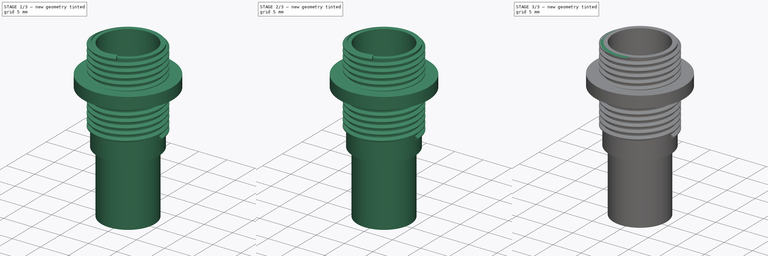
[diagram: build sequence overview — one tinted view per stage of 3, left to right]
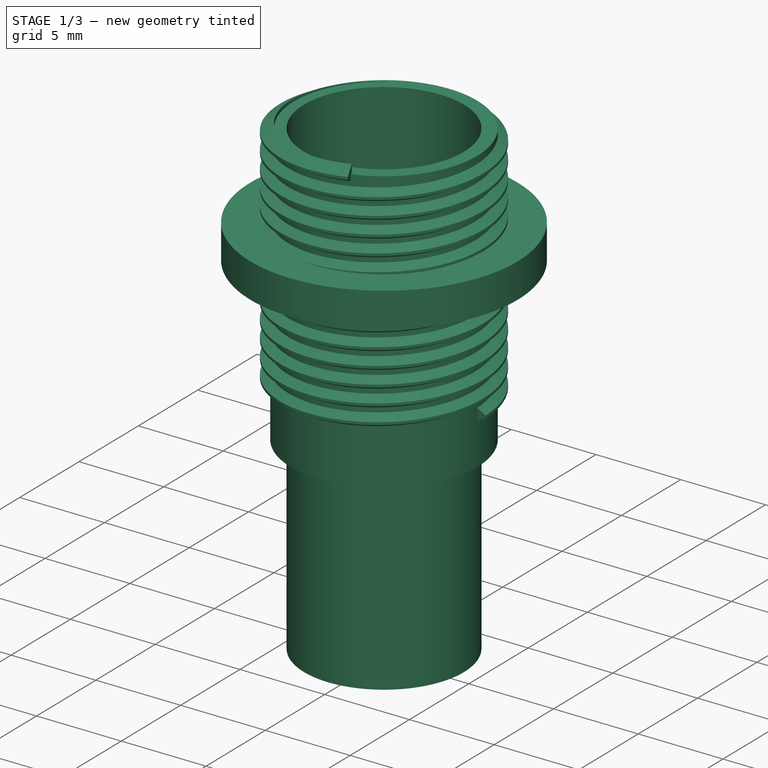
[diagram: stage 1 of 3 — iso view after this stage's code; geometry added in this stage tinted green]
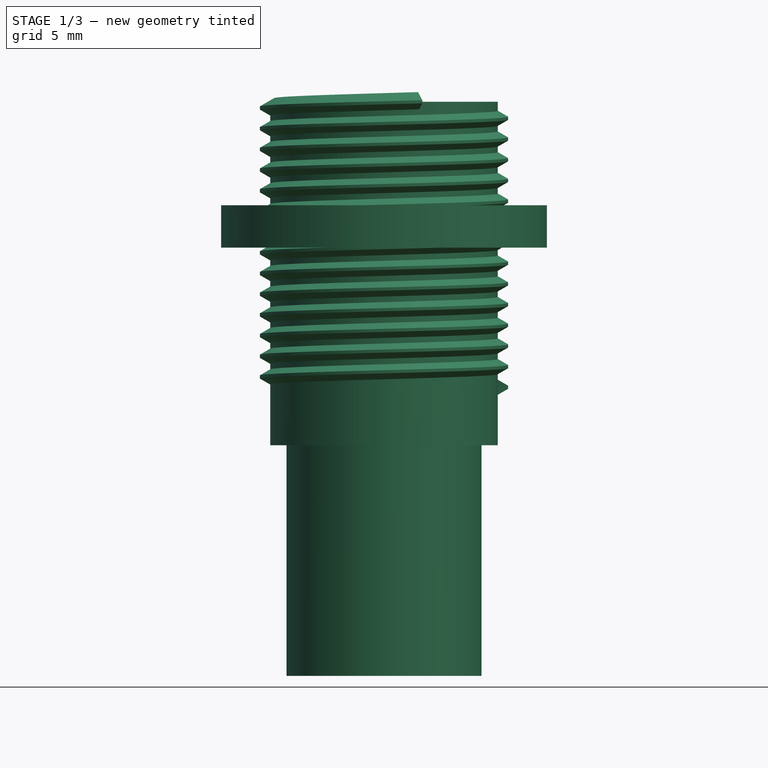
[diagram: stage 1 of 3 — front view after this stage's code; geometry added in this stage tinted green]
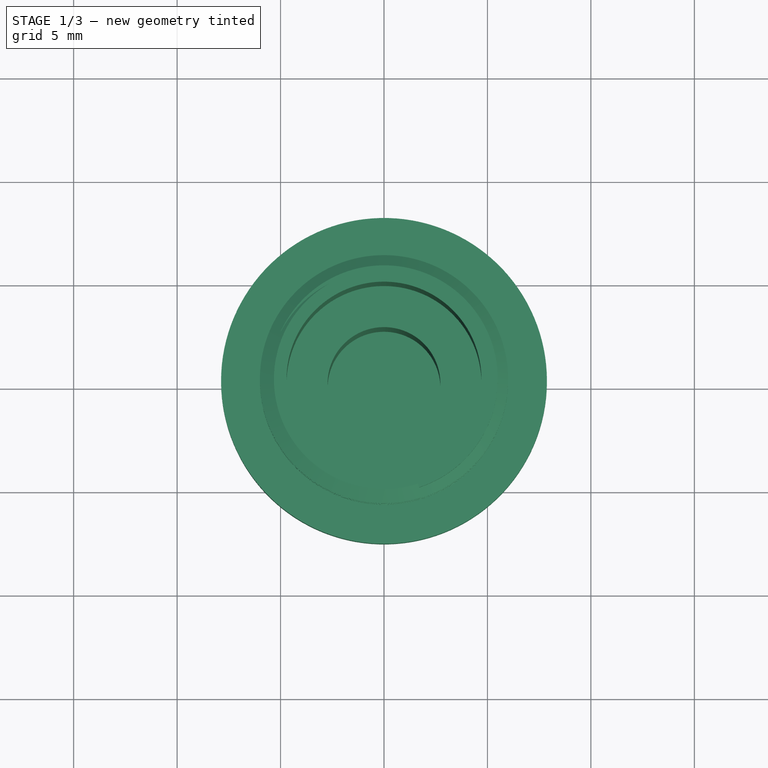
[diagram: stage 1 of 3 — top view after this stage's code; geometry added in this stage tinted green]
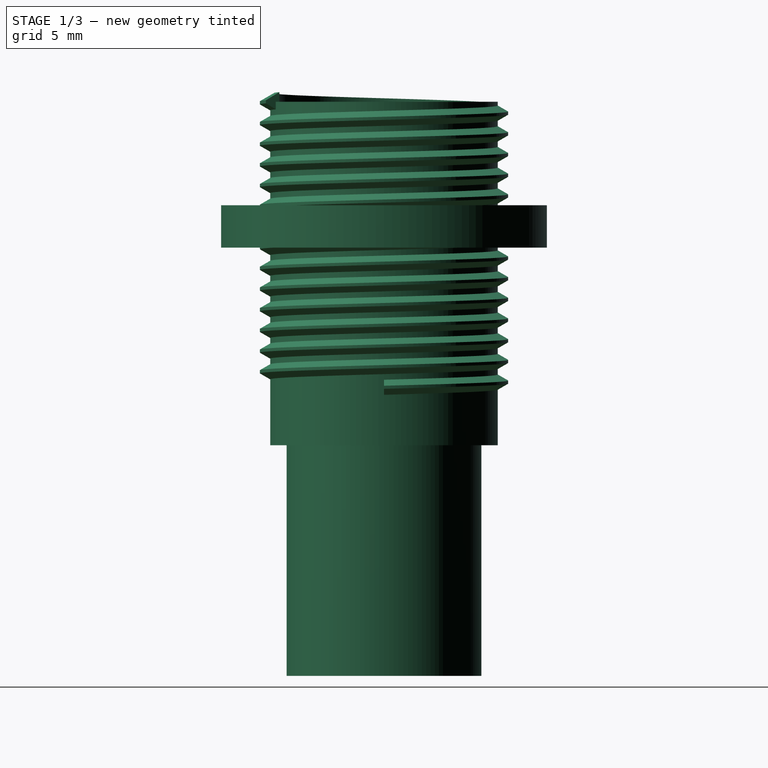
[diagram: stage 1 of 3 — right view after this stage's code; geometry added in this stage tinted green]
FCSTD DOCUMENT  (FreeCAD 0.15R4671 (Git))
Label: PF15_Body
License: All rights reserved
LicenseURL: http://en.wikipedia.org/wiki/All_rights_reserved
objects: Sketcher::SketchObject×2, Part::Helix×1, Part::Sweep×1, PartDesign::Revolution×1, Part::Box×1, Part::MultiFuse×1, Part::Cut×1
note: 9 computed .brp shape members not serialized (recipe doc carries the construction recipe); baked Part::Feature solids carry a one-line shape summary decoded from their .brp

FEATURE [Part::Helix] Helix
  Angle = 0
  Height = 13.8
  LocalCoord = 0
  Pitch = 1
  Radius = 5.5
  Style = 1
FEATURE [Sketcher::SketchObject] Sketch
  Placement = pos=(0,0,0) rot=(1,0,0;1.5708rad)
  sketch-geometry (5):
    g0: LineSegment [constr] StartX=6.13 StartY=0 StartZ=0 EndX=5.05 EndY=0.623538 EndZ=0
    g1: LineSegment StartX=5.32 StartY=0.467654 StartZ=0 EndX=5.32 EndY=-0.467654 EndZ=0
    g2: LineSegment StartX=5.32 StartY=-0.467654 StartZ=0 EndX=6 EndY=-0.0750555 EndZ=0
    g3: LineSegment StartX=6 StartY=-0.0750555 StartZ=0 EndX=6 EndY=0.0750555 EndZ=0
    g4: LineSegment StartX=5.32 StartY=0.467654 StartZ=0 EndX=6 EndY=0.0750555 EndZ=0
  constraints (16):
    c: PointOnObject(g0,g-1)
    c: PointOnObject(g1,g0)
    c: Vertical(g1)
    c: Coincident(g2,g1)
    c: Coincident(g3,g2)
    c: PointOnObject(g3,g0)
    c: Vertical(g3)
    c: DistanceX(g-1,g0) = 5.05
    c: DistanceX(g-1,g1) = 5.32
    c: Symmetric(g1,g1,g-1)
    c: DistanceX(g-1,g3) = 6
    c: Symmetric(g3,g2,g-1)
    c: DistanceX(g-1,g0) = 6.13
    c: Angle(g-1,g0) = 2.61799
    c: Coincident(g1,g4)
    c: Coincident(g3,g4)
FEATURE [Part::Sweep] Sweep
  Frenet = true
  Sections = -> [Sketch]
  Solid = true
  Spine = -> Helix
  Transition = 1
FEATURE [Sketcher::SketchObject] Sketch001
  Placement = pos=(0,0,0) rot=(1,0,0;1.5708rad)
  sketch-geometry (14):
    g0: LineSegment StartX=4.71 StartY=13.8 StartZ=0 EndX=5.5 EndY=13.8 EndZ=0
    g1: LineSegment StartX=5.5 StartY=-2.8 StartZ=0 EndX=4.71 EndY=-2.8 EndZ=0
    g2: LineSegment StartX=4.71 StartY=-2.8 StartZ=0 EndX=4.71 EndY=-13.95 EndZ=0
    g3: LineSegment StartX=4.71 StartY=-13.95 StartZ=0 EndX=0 EndY=-13.95 EndZ=0
    g4: LineSegment StartX=4.71 StartY=13.8 StartZ=0 EndX=4.71 EndY=1.6 EndZ=0
    g5: LineSegment StartX=4.71 StartY=1.6 StartZ=0 EndX=2.725 EndY=1.6 EndZ=0
    g6: LineSegment StartX=5.5 StartY=13.8 StartZ=0 EndX=5.5 EndY=8.8 EndZ=0
    g7: LineSegment StartX=5.5 StartY=8.8 StartZ=0 EndX=7.875 EndY=8.8 EndZ=0
    g8: LineSegment StartX=7.875 StartY=8.8 StartZ=0 EndX=7.875 EndY=6.75 EndZ=0
    g9: LineSegment StartX=7.875 StartY=6.75 StartZ=0 EndX=5.5 EndY=6.75 EndZ=0
    g10: LineSegment StartX=5.5 StartY=6.75 StartZ=0 EndX=5.5 EndY=-2.8 EndZ=0
    g11: LineSegment StartX=2.725 StartY=1.6 StartZ=0 EndX=2.725 EndY=-11.37 EndZ=0
    g12: LineSegment StartX=2.725 StartY=-11.37 StartZ=0 EndX=0 EndY=-11.37 EndZ=0
    g13: LineSegment StartX=0 StartY=-11.37 StartZ=0 EndX=0 EndY=-13.95 EndZ=0
  constraints (42):
    c: Horizontal(g0)
    c: Horizontal(g1)
    c: Coincident(g1,g2)
    c: Vertical(g2)
    c: Coincident(g2,g3)
    c: PointOnObject(g3,g-2)
    c: Horizontal(g3)
    c: Coincident(g0,g4)
    c: Vertical(g4)
    c: Coincident(g4,g5)
    c: Horizontal(g5)
    c: Coincident(g0,g6)
    c: Vertical(g6)
    c: Coincident(g6,g7)
    c: Horizontal(g7)
    c: Coincident(g7,g8)
    c: Vertical(g8)
    c: Coincident(g8,g9)
    c: Horizontal(g9)
    c: Coincident(g9,g10)
    c: Coincident(g10,g1)
    c: Vertical(g10)
    c: DistanceY(g6) = -5
    c: DistanceY(g8) = -2.05
    c: DistanceY(g10) = -9.55
    c: DistanceX(g-1,g7) = 7.875
    c: DistanceY(g4) = -12.2
    c: Coincident(g11,g5)
    c: Vertical(g11)
    c: Coincident(g12,g11)
    c: Horizontal(g12)
    c: Coincident(g13,g12)
    c: Coincident(g13,g3)
    c: DistanceY(g12,g0) = 25.17
    c: DistanceY(g3,g0) = 27.75
    c: DistanceX(g-1,g0) = 5.5
    c: DistanceX(g-1,g0) = 4.71
    c: DistanceX(g-1,g5) = 2.725
    c: PointOnObject(g12,g-2)
    c: Equal(g0,g1)
    c: Equal(g7,g9)
    c: DistanceY(g-1,g0) = 13.8
FEATURE [PartDesign::Revolution] Revolution
  Angle = 360
  Axis = (0,0,1)
  Base = (0,0,0)
  Placement = pos=(0,0,0) rot=(1,0,0;1.5708rad)
  ReferenceAxis = -> Sketch001 [V_Axis]
  Reversed = true
  Sketch = -> Sketch001
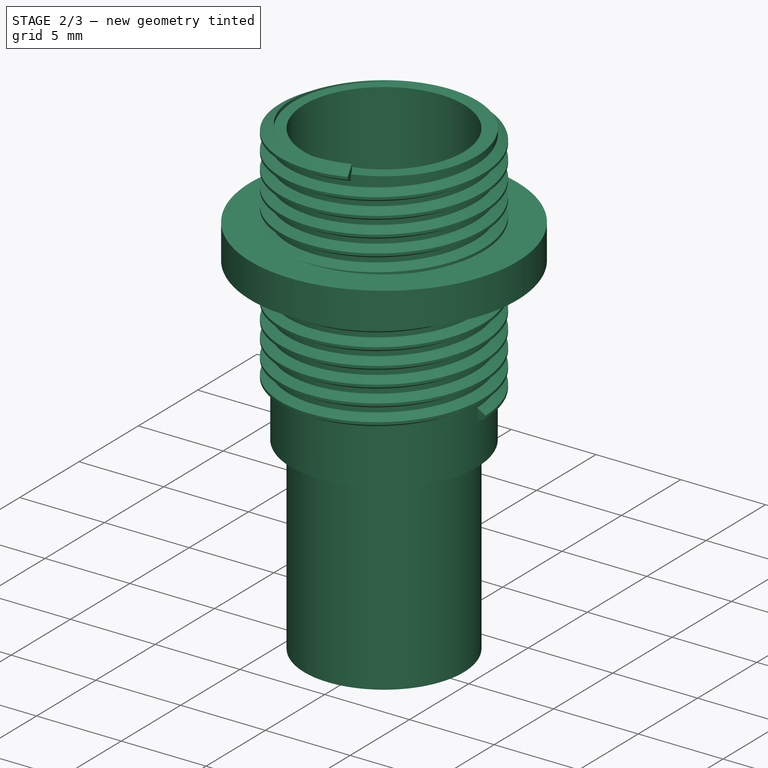
[diagram: stage 2 of 3 — iso view after this stage's code; geometry added in this stage tinted green]
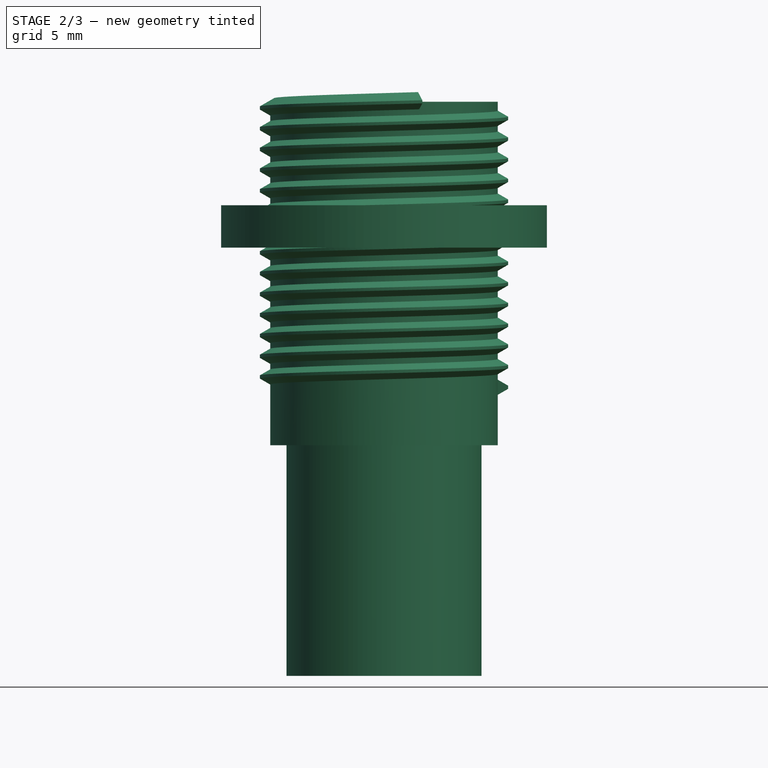
[diagram: stage 2 of 3 — front view after this stage's code; geometry added in this stage tinted green]
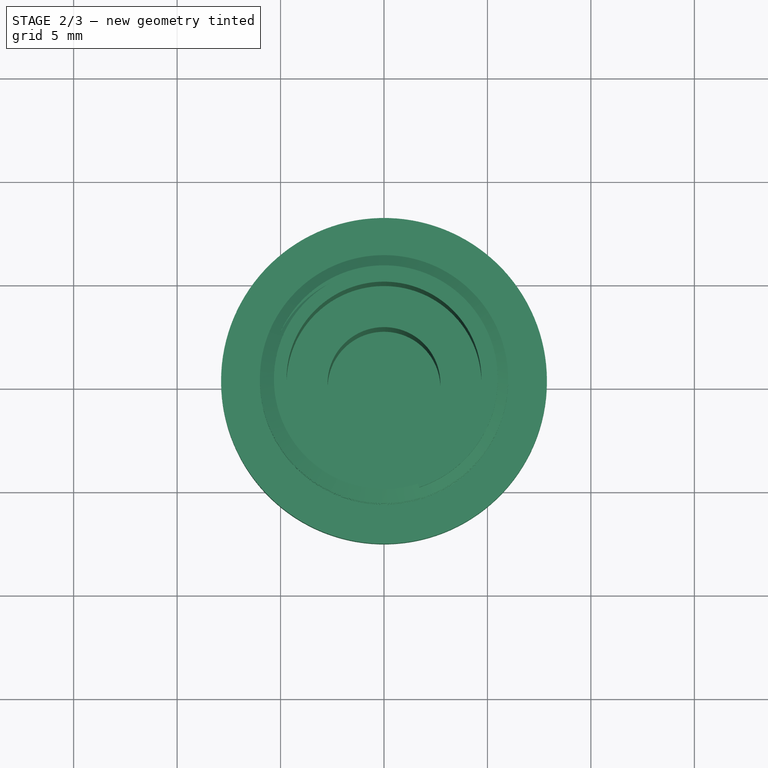
[diagram: stage 2 of 3 — top view after this stage's code; geometry added in this stage tinted green]
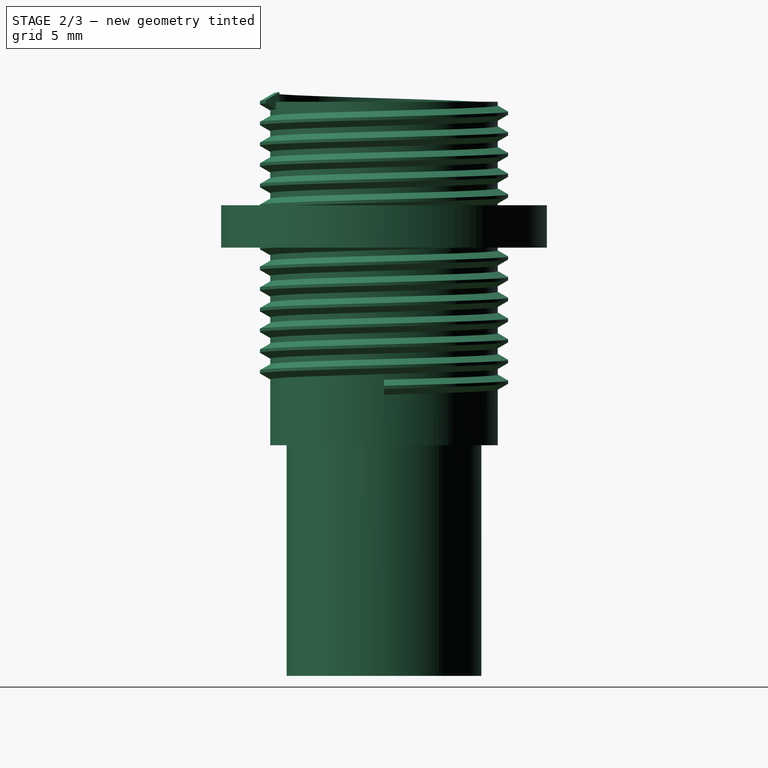
[diagram: stage 2 of 3 — right view after this stage's code; geometry added in this stage tinted green]
FEATURE [Part::MultiFuse] Fusion
  Shapes = -> [Revolution,Sweep]
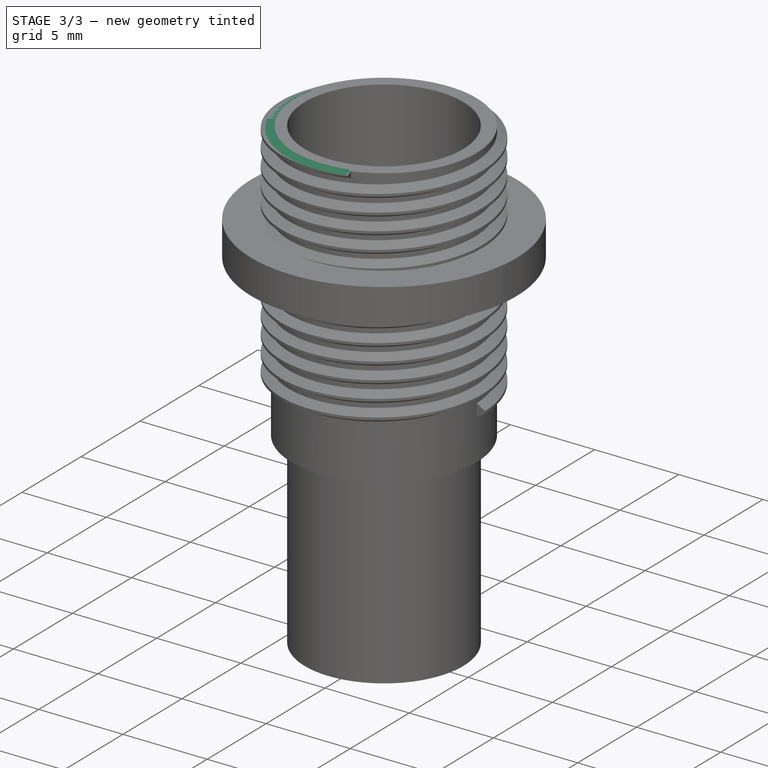
[diagram: stage 3 of 3 — iso view after this stage's code; geometry added in this stage tinted green]
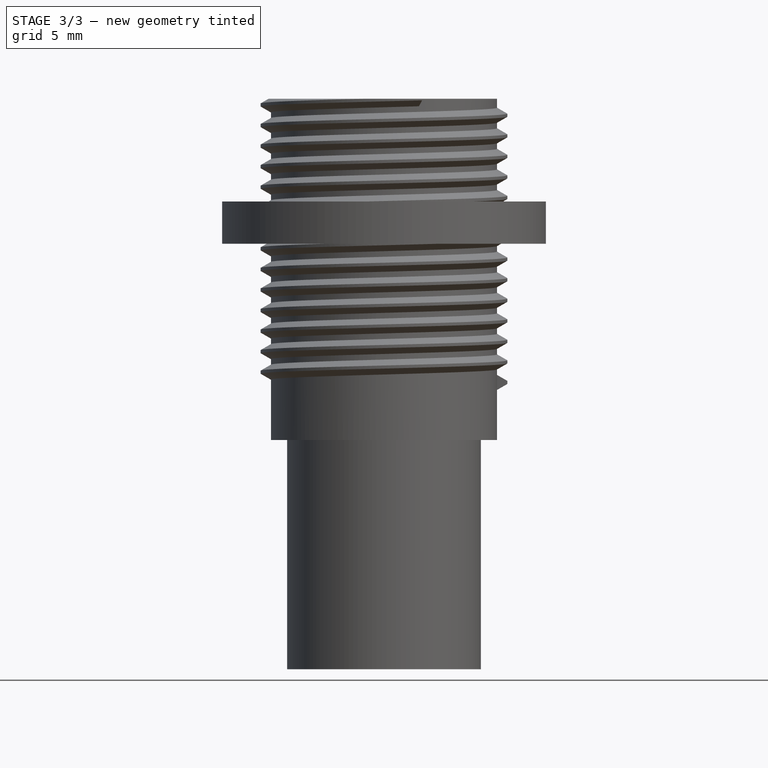
[diagram: stage 3 of 3 — front view after this stage's code; geometry added in this stage tinted green]
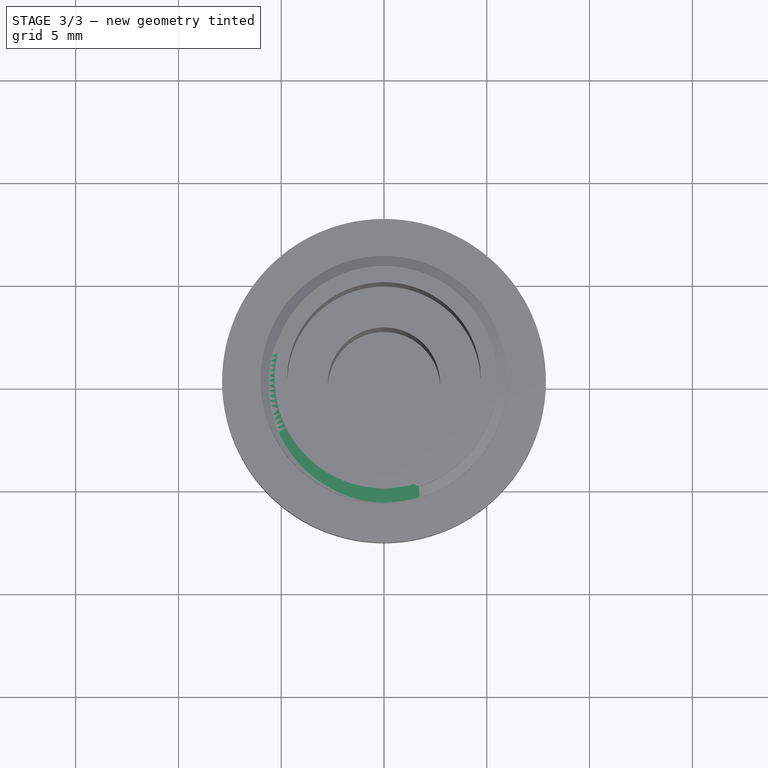
[diagram: stage 3 of 3 — top view after this stage's code; geometry added in this stage tinted green]
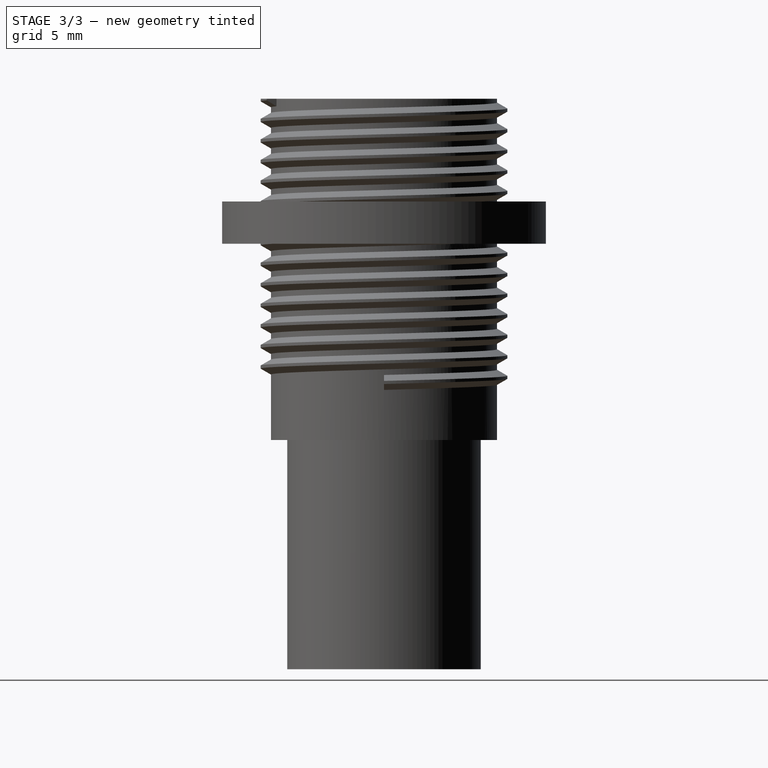
[diagram: stage 3 of 3 — right view after this stage's code; geometry added in this stage tinted green]
FEATURE [Part::Box] Box  label="Cube"
  Height = 10
  Length = 13
  Placement = pos=(-6.5,-7,13.8) rot=(0,0,1;0rad)
  Width = 13
FEATURE [Part::Cut] Cut
  Base = -> Fusion
  Tool = -> Box
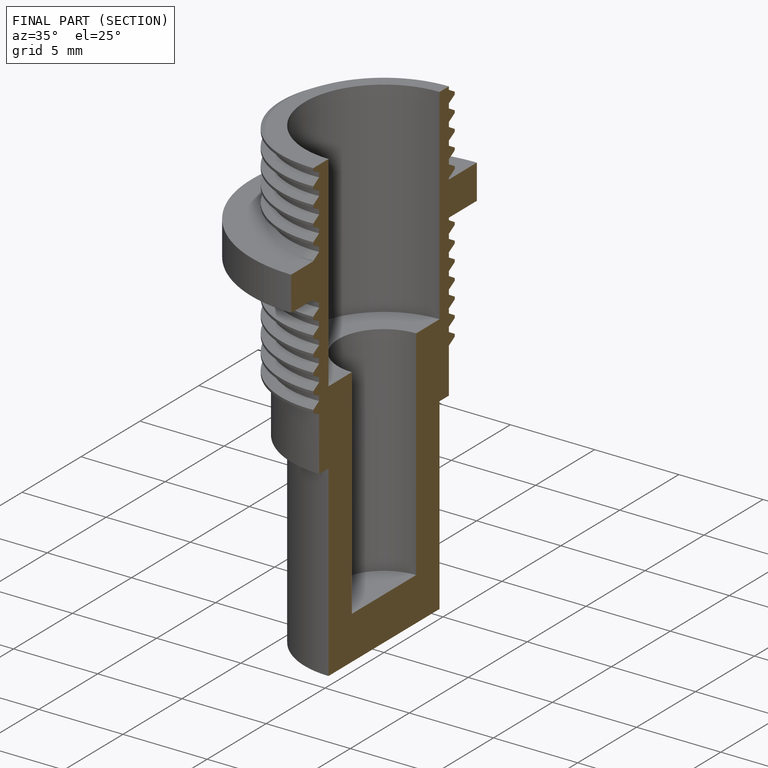
[diagram: finished part — half-section view (interior)]
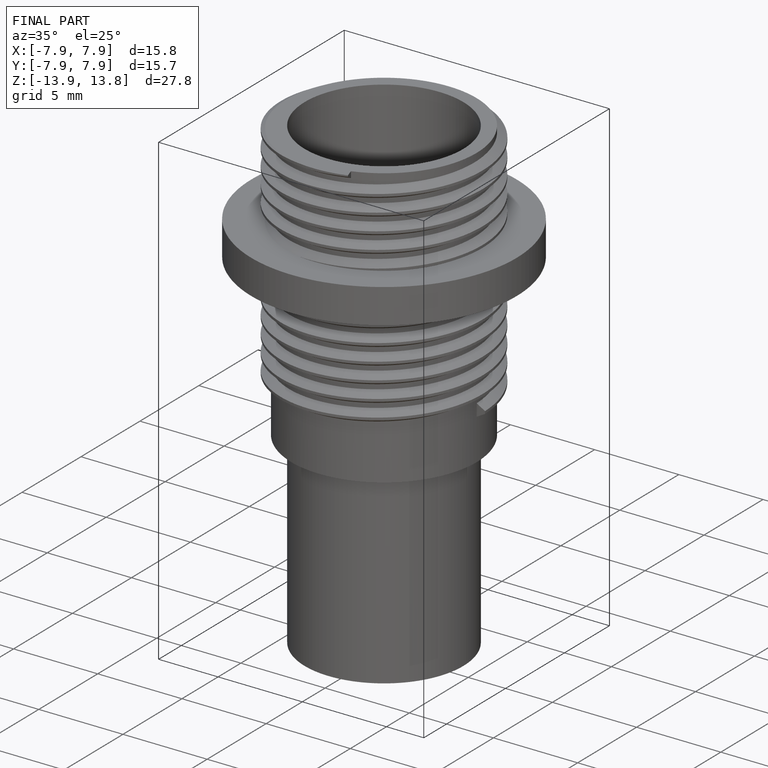
[diagram: finished part — iso view with bounding-box wireframe]
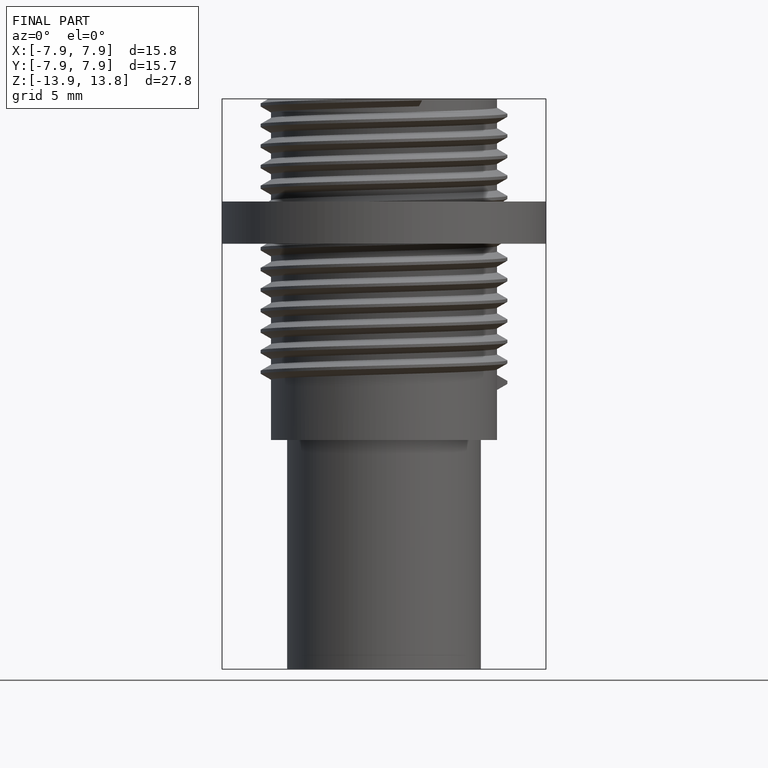
[diagram: finished part — front view with bounding-box wireframe]
